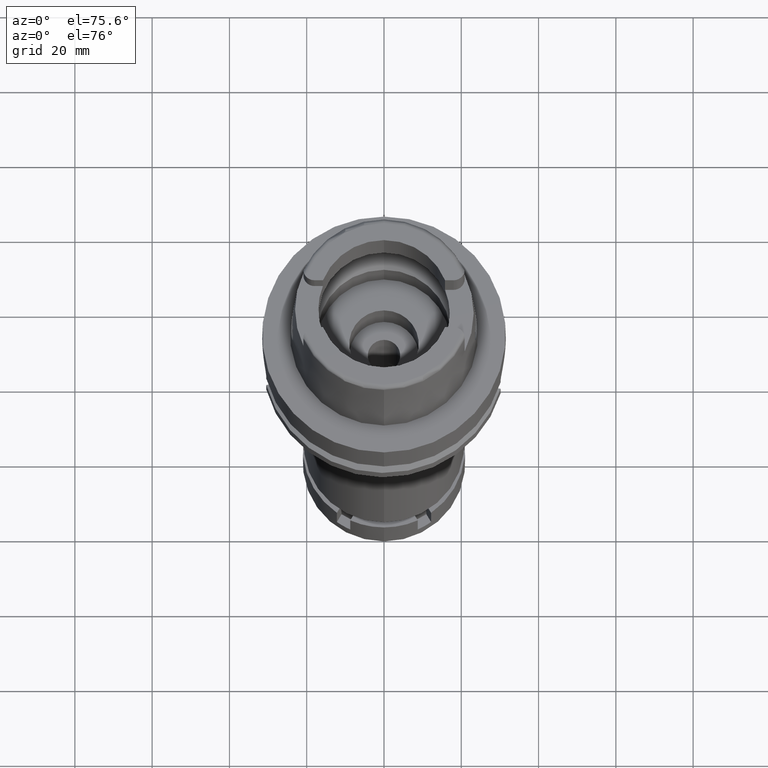
[diagram: clean part render]
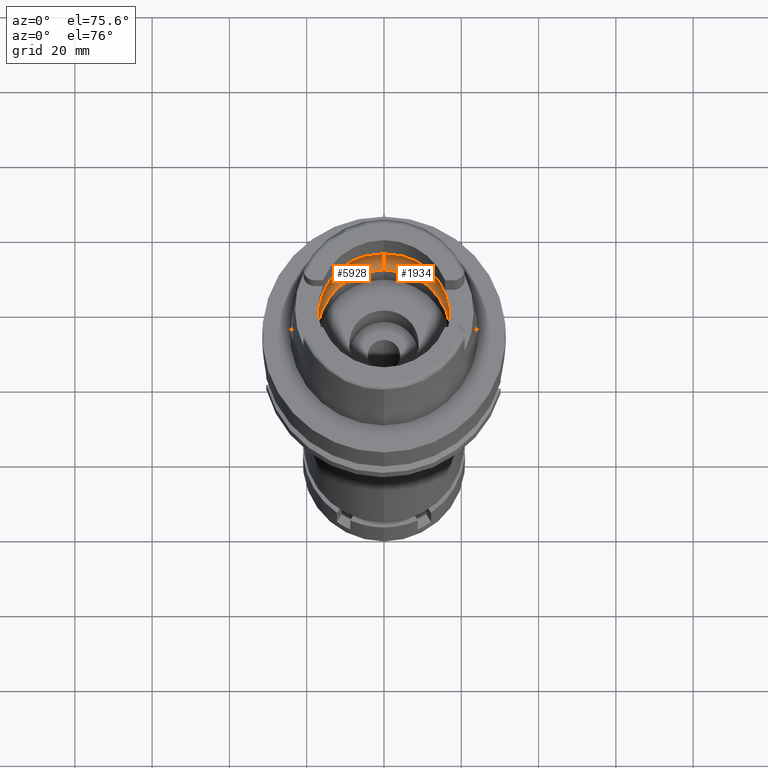
[diagram: same view with one multi-face feature highlighted, each face labeled with its STEP entity id]
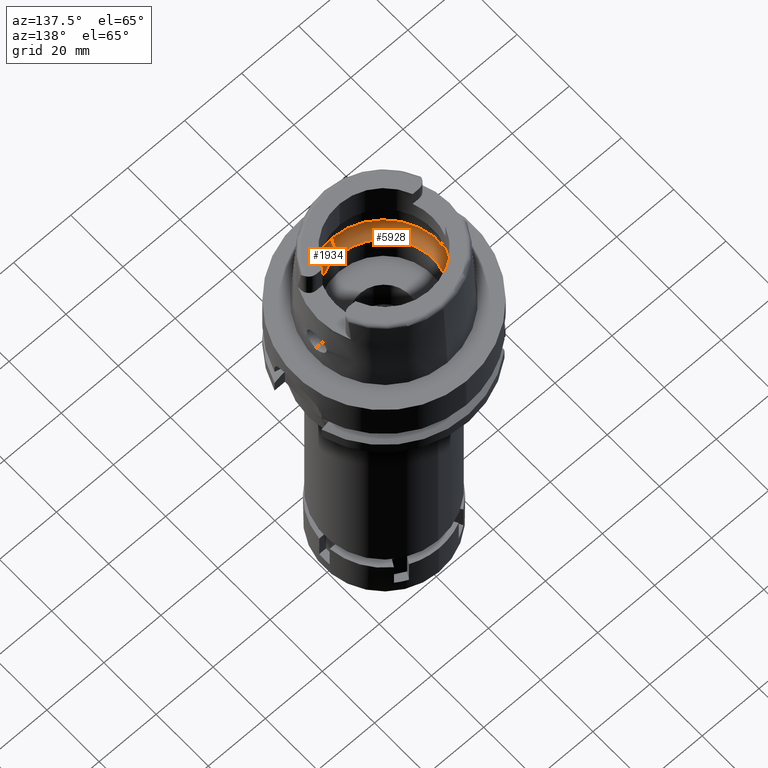
[diagram: same view with one multi-face feature highlighted, each face labeled with its STEP entity id]
A machine part, auxiliary view. The highlighted faces form ONE feature: a constant-radius fillet chain: 2 tangent blend faces with common blend radius 8 mm. The faces share edges in the B-rep.
A second angle (auxiliary view) of the same feature is appended — it is thin or edge-on in the first view.
Their STEP definitions:
[1] entity #5928 (Torus):
#31 = CARTESIAN_POINT ( 'NONE',  ( -19.84575864665999845, -2.479085262491000030, 6.186348233825000875 ) ) ;
#118 = ORIENTED_EDGE ( 'NONE', *, *, #1486, .F. ) ;
#293 = CARTESIAN_POINT ( 'NONE',  ( -19.93654847024033927, 0.9262661514275534191, 5.364596242157149142 ) ) ;
#308 = DIRECTION ( 'NONE',  ( 0.0000000000000000000, 0.0000000000000000000, 1.000000000000000000 ) ) ;
#507 = B_SPLINE_CURVE_WITH_KNOTS ( 'NONE', 3,
 ( #5013, #1622, #3987, #3615, #293, #2565, #664, #3490, #3553, #4555, #3092, #3584, #5475, #2539, #799 ),
 .UNSPECIFIED., .F., .F.,
 ( 4, 2, 2, 1, 1, 1, 2, 2, 4 ),
 ( 0.0000000000000000000, 0.2500000000000037748, 0.3750000000000058287, 0.4375000000000067168, 0.4687500000000069944, 0.4843750000000072720, 0.4921875000000072720, 0.5000000000000072164, 1.000000000000000000 ),
 .UNSPECIFIED. ) ;
#514 = CARTESIAN_POINT ( 'NONE',  ( -19.92390774200794112, -1.380028552273980136, 5.513104237275524788 ) ) ;
#664 = CARTESIAN_POINT ( 'NONE',  ( -19.93095498564698076, 1.158122524600810666, 5.432638017440244660 ) ) ;
#680 = CARTESIAN_POINT ( 'NONE',  ( 0.0000000000000000000, 17.25000000000000000, 0.1500000000002000011 ) ) ;
#799 = CARTESIAN_POINT ( 'NONE',  ( -19.84575864665999845, 2.479085262489999941, 6.186348233825000875 ) ) ;
#812 = CARTESIAN_POINT ( 'NONE',  ( 0.0000000000000000000, 0.0000000000000000000, 0.1500000000002000011 ) ) ;
#989 = CARTESIAN_POINT ( 'NONE',  ( -19.91447752810589833, -1.610669004317299313, 5.613000827215236299 ) ) ;
#1036 = ORIENTED_EDGE ( 'NONE', *, *, #6071, .F. ) ;
#1348 = AXIS2_PLACEMENT_3D ( 'NONE', #5063, #1740, #3610 ) ;
#1451 = CARTESIAN_POINT ( 'NONE',  ( -19.88058468752640806, -2.158466029911068951, 5.925243478961304433 ) ) ;
#1476 = CARTESIAN_POINT ( 'NONE',  ( -19.94501428475999560, -0.4961209670605932209, 5.249999999999998224 ) ) ;
#1486 = EDGE_CURVE ( 'NONE', #4646, #1579, #4757, .T. ) ;
#1506 = CARTESIAN_POINT ( 'NONE',  ( -19.92546218847456529, -1.335248582686434426, 5.495766530070138600 ) ) ;
#1579 = VERTEX_POINT ( 'NONE', #2158 ) ;
#1582 = AXIS2_PLACEMENT_3D ( 'NONE', #4540, #308, #2708 ) ;
#1612 = VERTEX_POINT ( 'NONE', #4659 ) ;
#1622 = CARTESIAN_POINT ( 'NONE',  ( -19.94501428476000271, 0.2480393703315448006, 5.249999999999999112 ) ) ;
#1740 = DIRECTION ( 'NONE',  ( 1.000000000000000000, 0.0000000000000000000, 0.0000000000000000000 ) ) ;
#1742 = CARTESIAN_POINT ( 'NONE',  ( -19.84575864665999845, 2.479085262489999941, 6.186348233825000875 ) ) ;
#1845 = DIRECTION ( 'NONE',  ( 0.0000000000000000000, 0.0000000000000000000, 1.000000000000000000 ) ) ;
#1955 = CARTESIAN_POINT ( 'NONE',  ( -19.90056096498078375, -1.871180422678105693, 5.748256676446665381 ) ) ;
#2075 = ORIENTED_EDGE ( 'NONE', *, *, #4794, .F. ) ;
#2158 = CARTESIAN_POINT ( 'NONE',  ( -19.84575864665999845, -2.479085262491000030, 6.186348233825000875 ) ) ;
#2396 = CARTESIAN_POINT ( 'NONE',  ( -19.92466831866535770, -1.358331184285348270, 5.504646393194166265 ) ) ;
#2449 = ORIENTED_EDGE ( 'NONE', *, *, #4305, .T. ) ;
#2493 = EDGE_CURVE ( 'NONE', #5388, #2988, #507, .T. ) ;
#2539 = CARTESIAN_POINT ( 'NONE',  ( -19.88331748051938064, 2.178416478297318104, 5.921431458854276464 ) ) ;
#2565 = CARTESIAN_POINT ( 'NONE',  ( -19.93292026401761419, 1.081805289724191210, 5.409024550128566311 ) ) ;
#2591 = ORIENTED_EDGE ( 'NONE', *, *, #2493, .F. ) ;
#2708 = DIRECTION ( 'NONE',  ( 0.0000000000000000000, 1.000000000000000000, 0.0000000000000000000 ) ) ;
#2758 = AXIS2_PLACEMENT_3D ( 'NONE', #4192, #4249, #4280 ) ;
#2849 = CARTESIAN_POINT ( 'NONE',  ( -19.91819175305377243, -1.528964846757111973, 5.574905751837347267 ) ) ;
#2985 = DIRECTION ( 'NONE',  ( 0.0000000000000000000, 0.0000000000000000000, -1.000000000000000000 ) ) ;
#2988 = VERTEX_POINT ( 'NONE', #1742 ) ;
#3054 = CIRCLE ( 'NONE', #2758, 7.999999999999992895 ) ;
#3092 = CARTESIAN_POINT ( 'NONE',  ( -19.92606541085463689, 1.317269455711140846, 5.488968463726680014 ) ) ;
#3115 = FACE_OUTER_BOUND ( 'NONE', #4746, .T. ) ;
#3209 = ORIENTED_EDGE ( 'NONE', *, *, #3923, .F. ) ;
#3252 = CARTESIAN_POINT ( 'NONE',  ( -19.90653714044385936, -1.770134880955051226, 5.691950022312413537 ) ) ;
#3490 = CARTESIAN_POINT ( 'NONE',  ( -19.92839760417749062, 1.244563448290384899, 5.462382440187010246 ) ) ;
#3552 = EDGE_CURVE ( 'NONE', #4519, #5482, #5968, .T. ) ;
#3553 = CARTESIAN_POINT ( 'NONE',  ( -19.92705277426681576, 1.287130182688421165, 5.477772523843790431 ) ) ;
#3584 = CARTESIAN_POINT ( 'NONE',  ( -19.92590934067762731, 1.321967662511047470, 5.490731940949380885 ) ) ;
#3610 = DIRECTION ( 'NONE',  ( 0.0000000000000000000, 0.6562500000000006661, -0.7545435292281016393 ) ) ;
#3615 = CARTESIAN_POINT ( 'NONE',  ( -19.93856414036406477, 0.8186926599981305674, 5.338707319452686839 ) ) ;
#3686 = DIRECTION ( 'NONE',  ( 0.0000000000000000000, 1.000000000000000000, 0.0000000000000000000 ) ) ;
#3766 = AXIS2_PLACEMENT_3D ( 'NONE', #5432, #2985, #3878 ) ;
#3806 = CARTESIAN_POINT ( 'NONE',  ( -19.92517003708521273, -1.343826440312797077, 5.499044281752649255 ) ) ;
#3878 = DIRECTION ( 'NONE',  ( 0.0000000000000000000, -1.000000000000000000, 0.0000000000000000000 ) ) ;
#3897 = CARTESIAN_POINT ( 'NONE',  ( 0.0000000000000000000, 0.0000000000000000000, 6.186348233825000875 ) ) ;
#3923 = EDGE_CURVE ( 'NONE', #1579, #5388, #4486, .T. ) ;
#3987 = CARTESIAN_POINT ( 'NONE',  ( -19.94340174866101734, 0.4850934535354030630, 5.274617952747172822 ) ) ;
#4192 = CARTESIAN_POINT ( 'NONE',  ( 0.0000000000000000000, -12.00000000000000000, 6.186348233825000875 ) ) ;
#4249 = DIRECTION ( 'NONE',  ( -1.000000000000000000, 0.0000000000000000000, 0.0000000000000000000 ) ) ;
#4280 = DIRECTION ( 'NONE',  ( 0.0000000000000000000, -0.6562500000000006661, -0.7545435292281016393 ) ) ;
#4305 = EDGE_CURVE ( 'NONE', #4519, #1612, #5558, .T. ) ;
#4486 = B_SPLINE_CURVE_WITH_KNOTS ( 'NONE', 3,
 ( #31, #5656, #1451, #1955, #3252, #989, #2849, #4736, #514, #2396, #3806, #1506, #5680, #1476, #5709 ),
 .UNSPECIFIED., .F., .F.,
 ( 4, 2, 2, 1, 1, 1, 2, 2, 4 ),
 ( 0.0000000000000000000, 0.2500000000000016653, 0.3750000000000023870, 0.4375000000000028866, 0.4687500000000030531, 0.4843750000000031641, 0.4921875000000032196, 0.5000000000000032196, 1.000000000000000000 ),
 .UNSPECIFIED. ) ;
#4519 = VERTEX_POINT ( 'NONE', #680 ) ;
#4540 = CARTESIAN_POINT ( 'NONE',  ( 0.0000000000000000000, 0.0000000000000000000, 6.186348233825000875 ) ) ;
#4555 = CARTESIAN_POINT ( 'NONE',  ( -19.92646224591025472, 1.305232515153943673, 5.484475949585862153 ) ) ;
#4586 = CARTESIAN_POINT ( 'NONE',  ( -19.94501428475999916, 0.0000000000000000000, 5.250000000000000000 ) ) ;
#4591 = AXIS2_PLACEMENT_3D ( 'NONE', #3897, #4797, #5806 ) ;
#4635 = TOROIDAL_SURFACE ( 'NONE', #1582, 12.00000000000000000, 8.000000000000000000 ) ;
#4646 = VERTEX_POINT ( 'NONE', #5514 ) ;
#4659 = CARTESIAN_POINT ( 'NONE',  ( 0.0000000000000000000, 20.00000000000000000, 6.186348233825000875 ) ) ;
#4736 = CARTESIAN_POINT ( 'NONE',  ( -19.92207706994746985, -1.430236285583133204, 5.533216425421237261 ) ) ;
#4746 = EDGE_LOOP ( 'NONE', ( #118, #1036, #5530, #2449, #2075, #2591, #3209 ) ) ;
#4757 = CIRCLE ( 'NONE', #3766, 20.00000000000000000 ) ;
#4794 = EDGE_CURVE ( 'NONE', #2988, #1612, #5166, .T. ) ;
#4797 = DIRECTION ( 'NONE',  ( 0.0000000000000000000, 0.0000000000000000000, -1.000000000000000000 ) ) ;
#4881 = AXIS2_PLACEMENT_3D ( 'NONE', #812, #1845, #3686 ) ;
#5013 = CARTESIAN_POINT ( 'NONE',  ( -19.94501428475999916, 0.0000000000000000000, 5.250000000000000000 ) ) ;
#5063 = CARTESIAN_POINT ( 'NONE',  ( 0.0000000000000000000, 12.00000000000000000, 6.186348233825000875 ) ) ;
#5166 = CIRCLE ( 'NONE', #4591, 20.00000000000001421 ) ;
#5388 = VERTEX_POINT ( 'NONE', #4586 ) ;
#5432 = CARTESIAN_POINT ( 'NONE',  ( 0.0000000000000000000, 0.0000000000000000000, 6.186348233825000875 ) ) ;
#5475 = CARTESIAN_POINT ( 'NONE',  ( -19.90995254882344412, 1.795933974831515068, 5.670404978818013753 ) ) ;
#5482 = VERTEX_POINT ( 'NONE', #6077 ) ;
#5514 = CARTESIAN_POINT ( 'NONE',  ( 0.0000000000000000000, -20.00000000000000000, 6.186348233825000875 ) ) ;
#5530 = ORIENTED_EDGE ( 'NONE', *, *, #3552, .F. ) ;
#5558 = CIRCLE ( 'NONE', #1348, 7.999999999999992895 ) ;
#5656 = CARTESIAN_POINT ( 'NONE',  ( -19.86453683446996266, -2.328760709817148111, 6.053898515773700417 ) ) ;
#5680 = CARTESIAN_POINT ( 'NONE',  ( -19.93856410866583317, -0.9461212226835923333, 5.348254255821970560 ) ) ;
#5709 = CARTESIAN_POINT ( 'NONE',  ( -19.94501428475999916, 0.0000000000000000000, 5.250000000000000000 ) ) ;
#5806 = DIRECTION ( 'NONE',  ( -0.9922879323327794543, 0.1239542631244973381, 0.0000000000000000000 ) ) ;
#5928 = ADVANCED_FACE ( 'NONE', ( #3115 ), #4635, .F. ) ;
#5968 = CIRCLE ( 'NONE', #4881, 17.25000000000000000 ) ;
#6071 = EDGE_CURVE ( 'NONE', #5482, #4646, #3054, .T. ) ;
#6077 = CARTESIAN_POINT ( 'NONE',  ( 0.0000000000000000000, -17.25000000000000000, 0.1500000000002000011 ) ) ;
[2] entity #1934 (Torus):
#226 = CARTESIAN_POINT ( 'NONE',  ( 19.91447780742437246, 1.610663291711310841, 5.612998104004511823 ) ) ;
#232 = CARTESIAN_POINT ( 'NONE',  ( 19.92839736527998795, -1.244570816102732236, 5.462385030248712248 ) ) ;
#242 = EDGE_CURVE ( 'NONE', #5731, #4646, #3361, .T. ) ;
#354 = EDGE_CURVE ( 'NONE', #5482, #4519, #1018, .T. ) ;
#572 = B_SPLINE_CURVE_WITH_KNOTS ( 'NONE', 3,
 ( #2989, #5400, #3053, #4940, #4045, #226, #792, #759, #3022, #5859, #718, #1675, #1134, #2659, #4487 ),
 .UNSPECIFIED., .F., .F.,
 ( 4, 2, 2, 1, 1, 1, 2, 2, 4 ),
 ( 0.0000000000000000000, 0.2499999999999978906, 0.3749999999999969469, 0.4374999999999963363, 0.4687499999999959477, 0.4843749999999960587, 0.4921874999999960032, 0.4999999999999960032, 1.000000000000000000 ),
 .UNSPECIFIED. ) ;
#619 = AXIS2_PLACEMENT_3D ( 'NONE', #4614, #4151, #1806 ) ;
#680 = CARTESIAN_POINT ( 'NONE',  ( 0.0000000000000000000, 17.25000000000000000, 0.1500000000002000011 ) ) ;
#718 = CARTESIAN_POINT ( 'NONE',  ( 19.92517031495895097, 1.343818775761117967, 5.499041339644736404 ) ) ;
#759 = CARTESIAN_POINT ( 'NONE',  ( 19.92207735139349367, 1.430229258461773956, 5.533213523230517517 ) ) ;
#765 = CARTESIAN_POINT ( 'NONE',  ( 19.84575864665999845, -2.479085262491000030, 6.186348233825000875 ) ) ;
#792 = CARTESIAN_POINT ( 'NONE',  ( 19.91819203562567253, 1.528958543118313473, 5.574902925593662850 ) ) ;
#803 = DIRECTION ( 'NONE',  ( 0.0000000000000000000, 0.0000000000000000000, 1.000000000000000000 ) ) ;
#863 = CARTESIAN_POINT ( 'NONE',  ( 0.0000000000000000000, 0.0000000000000000000, 0.1500000000002000011 ) ) ;
#890 = EDGE_CURVE ( 'NONE', #1612, #2091, #4752, .T. ) ;
#979 = VERTEX_POINT ( 'NONE', #2414 ) ;
#1018 = CIRCLE ( 'NONE', #1230, 17.25000000000000000 ) ;
#1109 = CARTESIAN_POINT ( 'NONE',  ( 0.0000000000000000000, 0.0000000000000000000, 6.186348233825000875 ) ) ;
#1134 = CARTESIAN_POINT ( 'NONE',  ( 19.93856420101220195, 0.9461154250117944642, 5.348253029309250728 ) ) ;
#1230 = AXIS2_PLACEMENT_3D ( 'NONE', #863, #803, #1329 ) ;
#1233 = CARTESIAN_POINT ( 'NONE',  ( 19.88331726735226113, -2.178418184679663749, 5.921432962333624594 ) ) ;
#1288 = ORIENTED_EDGE ( 'NONE', *, *, #5291, .F. ) ;
#1329 = DIRECTION ( 'NONE',  ( 0.0000000000000000000, -1.000000000000000000, 0.0000000000000000000 ) ) ;
#1348 = AXIS2_PLACEMENT_3D ( 'NONE', #5063, #1740, #3610 ) ;
#1591 = DIRECTION ( 'NONE',  ( 0.9922879323327794543, -0.1239542631244973381, 0.0000000000000000000 ) ) ;
#1612 = VERTEX_POINT ( 'NONE', #4659 ) ;
#1675 = CARTESIAN_POINT ( 'NONE',  ( 19.92546246839948410, 1.335240779489388130, 5.495763556830105756 ) ) ;
#1686 = CARTESIAN_POINT ( 'NONE',  ( 19.92606513842726912, -1.317277204138124880, 5.488971370721959175 ) ) ;
#1717 = CARTESIAN_POINT ( 'NONE',  ( 19.94501428475999916, 0.0000000000000000000, 5.250000000000000000 ) ) ;
#1727 = AXIS2_PLACEMENT_3D ( 'NONE', #3532, #3407, #2548 ) ;
#1740 = DIRECTION ( 'NONE',  ( 1.000000000000000000, 0.0000000000000000000, 0.0000000000000000000 ) ) ;
#1806 = DIRECTION ( 'NONE',  ( 0.0000000000000000000, 1.000000000000000000, 0.0000000000000000000 ) ) ;
#1934 = ADVANCED_FACE ( 'NONE', ( #2973 ), #3583, .F. ) ;
#2091 = VERTEX_POINT ( 'NONE', #6001 ) ;
#2096 = AXIS2_PLACEMENT_3D ( 'NONE', #1109, #4333, #1591 ) ;
#2140 = CARTESIAN_POINT ( 'NONE',  ( 19.94501428475999560, -0.2480409225904866288, 5.249999999999998224 ) ) ;
#2414 = CARTESIAN_POINT ( 'NONE',  ( 19.94501428475999916, 0.0000000000000000000, 5.250000000000000000 ) ) ;
#2439 = CARTESIAN_POINT ( 'NONE',  ( 19.84575864665999845, -2.479085262491000030, 6.186348233825000875 ) ) ;
#2548 = DIRECTION ( 'NONE',  ( 0.0000000000000000000, 1.000000000000000000, 0.0000000000000000000 ) ) ;
#2602 = CARTESIAN_POINT ( 'NONE',  ( 19.93292009014225385, -1.081811776603662567, 5.409026499425241497 ) ) ;
#2617 = ORIENTED_EDGE ( 'NONE', *, *, #242, .F. ) ;
#2659 = CARTESIAN_POINT ( 'NONE',  ( 19.94501428475999560, 0.4961178817713813860, 5.250000000000000888 ) ) ;
#2664 = CARTESIAN_POINT ( 'NONE',  ( 19.94340172547762435, -0.4850964740021785904, 5.274618261423839272 ) ) ;
#2758 = AXIS2_PLACEMENT_3D ( 'NONE', #4192, #4249, #4280 ) ;
#2919 = EDGE_CURVE ( 'NONE', #2091, #979, #572, .T. ) ;
#2973 = FACE_OUTER_BOUND ( 'NONE', #3416, .T. ) ;
#2989 = CARTESIAN_POINT ( 'NONE',  ( 19.84575864665999845, 2.479085262491000030, 6.186348233825000875 ) ) ;
#3022 = CARTESIAN_POINT ( 'NONE',  ( 19.92390802166061903, 1.380021155214873119, 5.513101308918829879 ) ) ;
#3030 = CARTESIAN_POINT ( 'NONE',  ( 19.93095478351687788, -1.158129430943444449, 5.432640251379964980 ) ) ;
#3053 = CARTESIAN_POINT ( 'NONE',  ( 19.88058486986654572, 2.158464112384509193, 5.925242031513535679 ) ) ;
#3054 = CIRCLE ( 'NONE', #2758, 7.999999999999992895 ) ;
#3361 = CIRCLE ( 'NONE', #2096, 20.00000000000001421 ) ;
#3407 = DIRECTION ( 'NONE',  ( 0.0000000000000000000, 0.0000000000000000000, 1.000000000000000000 ) ) ;
#3416 = EDGE_LOOP ( 'NONE', ( #5366, #5916, #4415, #3810, #5204, #2617, #1288 ) ) ;
#3532 = CARTESIAN_POINT ( 'NONE',  ( 0.0000000000000000000, 0.0000000000000000000, 6.186348233825000875 ) ) ;
#3554 = CARTESIAN_POINT ( 'NONE',  ( 19.92590906290987363, -1.321975527286320506, 5.490734903793806687 ) ) ;
#3583 = TOROIDAL_SURFACE ( 'NONE', #1727, 12.00000000000000000, 8.000000000000000000 ) ;
#3610 = DIRECTION ( 'NONE',  ( 0.0000000000000000000, 0.6562500000000006661, -0.7545435292281016393 ) ) ;
#3810 = ORIENTED_EDGE ( 'NONE', *, *, #354, .F. ) ;
#4045 = CARTESIAN_POINT ( 'NONE',  ( 19.90653740763088919, 1.770130309642983013, 5.691947549107391424 ) ) ;
#4151 = DIRECTION ( 'NONE',  ( 0.0000000000000000000, 0.0000000000000000000, -1.000000000000000000 ) ) ;
#4192 = CARTESIAN_POINT ( 'NONE',  ( 0.0000000000000000000, -12.00000000000000000, 6.186348233825000875 ) ) ;
#4249 = DIRECTION ( 'NONE',  ( -1.000000000000000000, 0.0000000000000000000, 0.0000000000000000000 ) ) ;
#4280 = DIRECTION ( 'NONE',  ( 0.0000000000000000000, -0.6562500000000006661, -0.7545435292281016393 ) ) ;
#4305 = EDGE_CURVE ( 'NONE', #4519, #1612, #5558, .T. ) ;
#4333 = DIRECTION ( 'NONE',  ( 0.0000000000000000000, 0.0000000000000000000, -1.000000000000000000 ) ) ;
#4415 = ORIENTED_EDGE ( 'NONE', *, *, #4305, .F. ) ;
#4461 = CARTESIAN_POINT ( 'NONE',  ( 19.93856404763053547, -0.8186976556962597407, 5.338708415004484564 ) ) ;
#4487 = CARTESIAN_POINT ( 'NONE',  ( 19.94501428475999916, 0.0000000000000000000, 5.250000000000000000 ) ) ;
#4495 = CARTESIAN_POINT ( 'NONE',  ( 19.92705251603473471, -1.287137774195317608, 5.477775297526381593 ) ) ;
#4519 = VERTEX_POINT ( 'NONE', #680 ) ;
#4614 = CARTESIAN_POINT ( 'NONE',  ( 0.0000000000000000000, 0.0000000000000000000, 6.186348233825000875 ) ) ;
#4646 = VERTEX_POINT ( 'NONE', #5514 ) ;
#4659 = CARTESIAN_POINT ( 'NONE',  ( 0.0000000000000000000, 20.00000000000000000, 6.186348233825000875 ) ) ;
#4752 = CIRCLE ( 'NONE', #619, 20.00000000000000000 ) ;
#4940 = CARTESIAN_POINT ( 'NONE',  ( 19.90056121658070509, 1.871176557661653028, 5.748254428408765548 ) ) ;
#4959 = B_SPLINE_CURVE_WITH_KNOTS ( 'NONE', 3,
 ( #1717, #2140, #2664, #4461, #5378, #2602, #3030, #232, #4495, #5014, #1686, #3554, #5442, #1233, #765 ),
 .UNSPECIFIED., .F., .F.,
 ( 4, 2, 2, 1, 1, 1, 2, 2, 4 ),
 ( 0.0000000000000000000, 0.2499999999999987232, 0.3749999999999981126, 0.4374999999999977796, 0.4687499999999976130, 0.4843749999999973910, 0.4921874999999975020, 0.4999999999999975575, 1.000000000000000000 ),
 .UNSPECIFIED. ) ;
#5014 = CARTESIAN_POINT ( 'NONE',  ( 19.92646197918816497, -1.305240201015200885, 5.484478803106744849 ) ) ;
#5063 = CARTESIAN_POINT ( 'NONE',  ( 0.0000000000000000000, 12.00000000000000000, 6.186348233825000875 ) ) ;
#5204 = ORIENTED_EDGE ( 'NONE', *, *, #6071, .T. ) ;
#5291 = EDGE_CURVE ( 'NONE', #979, #5731, #4959, .T. ) ;
#5366 = ORIENTED_EDGE ( 'NONE', *, *, #2919, .F. ) ;
#5378 = CARTESIAN_POINT ( 'NONE',  ( 19.93654834852757674, -0.9262717684427986820, 5.364597653862788640 ) ) ;
#5400 = CARTESIAN_POINT ( 'NONE',  ( 19.86453694063900954, 2.328759859908619223, 6.053897766926341184 ) ) ;
#5442 = CARTESIAN_POINT ( 'NONE',  ( 19.90995224292280597, -1.795938310847502217, 5.670407811397693898 ) ) ;
#5482 = VERTEX_POINT ( 'NONE', #6077 ) ;
#5514 = CARTESIAN_POINT ( 'NONE',  ( 0.0000000000000000000, -20.00000000000000000, 6.186348233825000875 ) ) ;
#5558 = CIRCLE ( 'NONE', #1348, 7.999999999999992895 ) ;
#5731 = VERTEX_POINT ( 'NONE', #2439 ) ;
#5859 = CARTESIAN_POINT ( 'NONE',  ( 19.92466859728581952, 1.358323626958147345, 5.504643456233413445 ) ) ;
#5916 = ORIENTED_EDGE ( 'NONE', *, *, #890, .F. ) ;
#6001 = CARTESIAN_POINT ( 'NONE',  ( 19.84575864665999845, 2.479085262491000030, 6.186348233825000875 ) ) ;
#6071 = EDGE_CURVE ( 'NONE', #5482, #4646, #3054, .T. ) ;
#6077 = CARTESIAN_POINT ( 'NONE',  ( 0.0000000000000000000, -17.25000000000000000, 0.1500000000002000011 ) ) ;